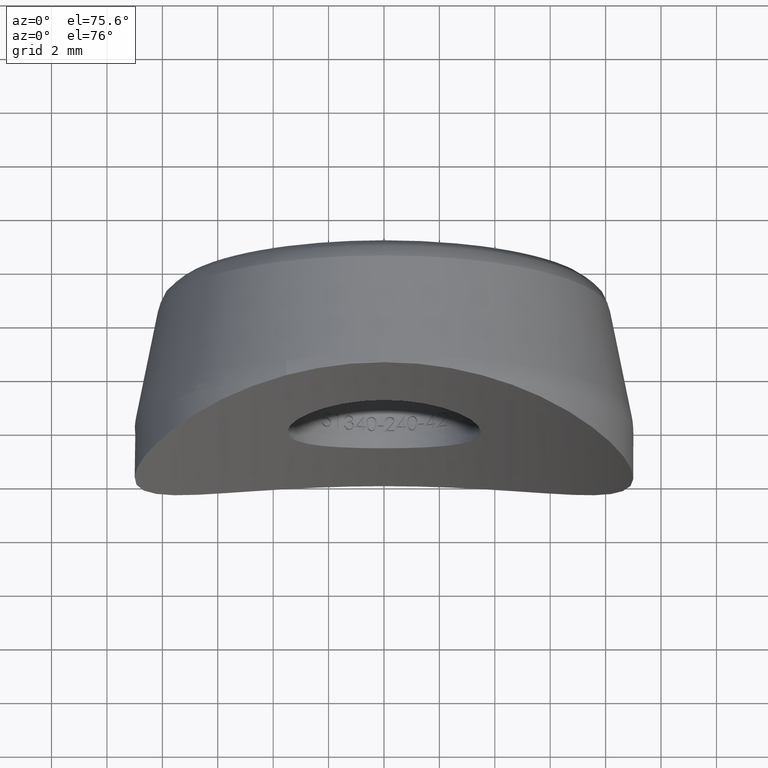
[diagram: clean part render]
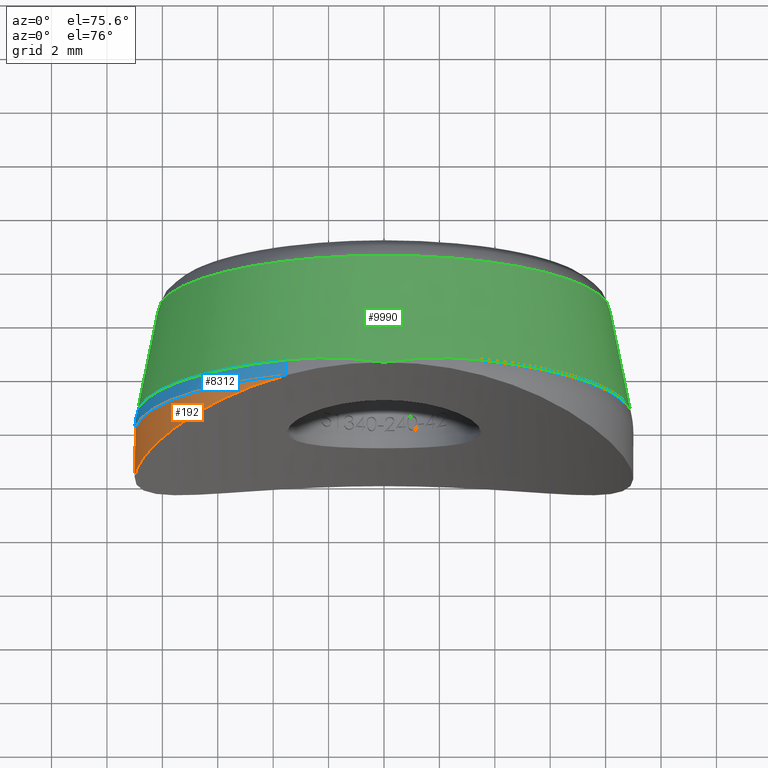
[diagram: same view with three faces highlighted in distinct colors, each labeled with its STEP entity id]
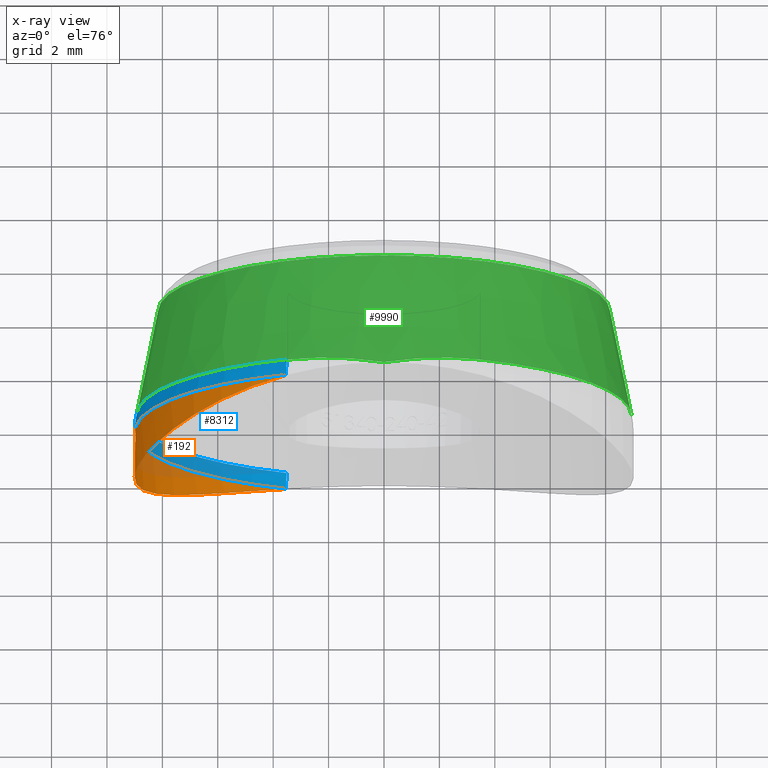
[diagram: x-ray of the same camera — body ghosted, the three highlighted faces saturated]
A machine part, auxiliary view with three faces highlighted in distinct colors.
The next image is the same camera in x-ray (body ghosted, the three faces saturated) — at least one of them is partly hidden behind the body in this view.
Their STEP definitions:

[orange] entity #192 — the highlighted cylindrical surface (partial cylindrical patch) has radius 9 mm, axis along (0, 1, 0).
#61 = CARTESIAN_POINT ( 'NONE',  ( -7.736212241592220984, -1.460268368390549076, -4.619470464599940485 ) ) ;
#99 = CARTESIAN_POINT ( 'NONE',  ( -8.324705470766970095, -1.701784759971366467, -3.448391093984752409 ) ) ;
#192 = ADVANCED_FACE ( 'NONE', ( #10699 ), #4926, .T. ) ;
#521 = DIRECTION ( 'NONE',  ( 0.000000000000000000, 0.000000000000000000, 1.000000000000000000 ) ) ;
#930 = CARTESIAN_POINT ( 'NONE',  ( -6.096080592182215874, -0.8924105569262656967, 6.635265254513756261 ) ) ;
#1112 = CARTESIAN_POINT ( 'NONE',  ( -8.868711480248640200, -1.944163354106136721, 1.547448648860504594 ) ) ;
#1476 = DIRECTION ( 'NONE',  ( 0.000000000000000000, 1.000000000000000000, 0.000000000000000000 ) ) ;
#1851 = CARTESIAN_POINT ( 'NONE',  ( -3.939818330900121790, -0.3652902765261617501, 8.103713511911527334 ) ) ;
#1935 = CARTESIAN_POINT ( 'NONE',  ( -7.978767912354337355, -1.551915153110567047, 4.254895545333862827 ) ) ;
#1969 = CARTESIAN_POINT ( 'NONE',  ( -6.986905837801116625, -1.182081130002816449, -5.689688094331717849 ) ) ;
#2064 = CARTESIAN_POINT ( 'NONE',  ( -8.730438296520546260, -1.881037187961504209, 2.197417258610651736 ) ) ;
#2610 = DIRECTION ( 'NONE',  ( -2.630675051077222500E-17, -1.000000000000000000, 0.000000000000000000 ) ) ;
#2702 = DIRECTION ( 'NONE',  ( 1.000000000000000000, -2.409338161078898811E-17, 0.000000000000000000 ) ) ;
#2939 = CARTESIAN_POINT ( 'NONE',  ( -8.828082600335466879, -1.925461494916844485, 1.764696307993757651 ) ) ;
#2990 = CARTESIAN_POINT ( 'NONE',  ( -8.999503959662272123, -2.004976458114370530, 0.4533054639374571870 ) ) ;
#3102 = B_SPLINE_CURVE_WITH_KNOTS ( 'NONE', 3,
 ( #7743, #1851, #6902, #5020, #4067, #930, #3979, #8924, #7868, #1935, #9893, #12916, #2064, #2939, #1112, #6866, #2990, #5862, #8882, #8051, #10948, #9059, #99, #10982, #61, #4978, #1969, #11897, #9988, #7031, #9935, #3947, #11984, #10903 ),
 .UNSPECIFIED., .F., .F.,
 ( 4, 2, 2, 2, 2, 2, 2, 2, 2, 2, 2, 2, 2, 2, 2, 2, 4 ),
 ( 0.003629396512257983438, 0.004955249946715591450, 0.006281103381173200328, 0.007606956815630807472, 0.008932810250088416351, 0.01158451711900363584, 0.01224744383623243768, 0.01291037055346124299, 0.01423622398791885360, 0.01556207742237646421, 0.01688793085683407483, 0.01821378429129168197, 0.01953963772574928912, 0.02086549116020689973, 0.02219134459466451034, 0.02351719802912212096, 0.02484305146357973157 ),
 .UNSPECIFIED. ) ;
#3461 = CIRCLE ( 'NONE', #4035, 9.000000000000000000 ) ;
#3947 = CARTESIAN_POINT ( 'NONE',  ( -4.327446838571765930, -0.4428089517646502937, -7.903573071571256214 ) ) ;
#3979 = CARTESIAN_POINT ( 'NONE',  ( -6.407001631410156328, -0.9890386179552449475, 6.335384170830606898 ) ) ;
#4035 = AXIS2_PLACEMENT_3D ( 'NONE', #9608, #2610, #2702 ) ;
#4067 = CARTESIAN_POINT ( 'NONE',  ( -5.428266630602044174, -0.7037976941601992165, 7.191861022797259473 ) ) ;
#4533 = VERTEX_POINT ( 'NONE', #8195 ) ;
#4926 = CYLINDRICAL_SURFACE ( 'NONE', #5630, 9.000000000000000000 ) ;
#4978 = CARTESIAN_POINT ( 'NONE',  ( -7.255648715824005279, -1.278615850110074392, -5.342663093704675070 ) ) ;
#5020 = CARTESIAN_POINT ( 'NONE',  ( -5.069946772384122724, -0.6116343676730731094, 7.448850926577253340 ) ) ;
#5076 = ORIENTED_EDGE ( 'NONE', *, *, #11708, .T. ) ;
#5630 = AXIS2_PLACEMENT_3D ( 'NONE', #6416, #1476, #521 ) ;
#5862 = CARTESIAN_POINT ( 'NONE',  ( -9.000485022732950924, -2.005436455884692659, -0.4333898004942154936 ) ) ;
#6416 = CARTESIAN_POINT ( 'NONE',  ( 0.000000000000000000, -10.00000000000000000, 0.000000000000000000 ) ) ;
#6866 = CARTESIAN_POINT ( 'NONE',  ( -8.966437089148390882, -1.989373801478621751, 0.8930669008316337587 ) ) ;
#6902 = CARTESIAN_POINT ( 'NONE',  ( -4.326899356163050214, -0.4427578506482586773, 7.903649939288478699 ) ) ;
#7031 = CARTESIAN_POINT ( 'NONE',  ( -5.429810668275199426, -0.7042392497046907618, -7.190548806686810401 ) ) ;
#7723 = ORIENTED_EDGE ( 'NONE', *, *, #8582, .F. ) ;
#7743 = CARTESIAN_POINT ( 'NONE',  ( -3.536529139191779691, -0.2970585407783443155, 8.276047465284840143 ) ) ;
#7868 = CARTESIAN_POINT ( 'NONE',  ( -7.252411954904890656, -1.277411947144067028, 5.347311400281633098 ) ) ;
#8051 = CARTESIAN_POINT ( 'NONE',  ( -8.837161727733391814, -1.929563424177947795, -1.761012243944029443 ) ) ;
#8195 = CARTESIAN_POINT ( 'NONE',  ( -3.536529139191779691, -0.2970585407783443155, 8.276047465284840143 ) ) ;
#8582 = EDGE_CURVE ( 'NONE', #4533, #9681, #3102, .T. ) ;
#8882 = CARTESIAN_POINT ( 'NONE',  ( -8.967462006814395536, -1.989852203035072042, -0.8838646286490374759 ) ) ;
#8924 = CARTESIAN_POINT ( 'NONE',  ( -6.984547120967750544, -1.181290466007106632, 5.692351360543773886 ) ) ;
#9059 = CARTESIAN_POINT ( 'NONE',  ( -8.485024214885042326, -1.771570017016957932, -3.032816774959728789 ) ) ;
#9608 = CARTESIAN_POINT ( 'NONE',  ( 0.000000000000000000, -0.2970585407783502552, 0.000000000000000000 ) ) ;
#9681 = VERTEX_POINT ( 'NONE', #11333 ) ;
#9893 = CARTESIAN_POINT ( 'NONE',  ( -8.350844510711889157, -1.711977935656837424, 3.470575901111829786 ) ) ;
#9935 = CARTESIAN_POINT ( 'NONE',  ( -5.077129608634842306, -0.6133409390758622903, -7.444193601422150586 ) ) ;
#9988 = CARTESIAN_POINT ( 'NONE',  ( -6.093914555041149761, -0.8917933331739382741, -6.637095858168533091 ) ) ;
#10699 = FACE_OUTER_BOUND ( 'NONE', #11045, .T. ) ;
#10903 = CARTESIAN_POINT ( 'NONE',  ( -3.536529139191820992, -0.2970585407783558063, -8.276047465284809945 ) ) ;
#10948 = CARTESIAN_POINT ( 'NONE',  ( -8.740402880028945276, -1.885112347579089187, -2.190655384227395253 ) ) ;
#10982 = CARTESIAN_POINT ( 'NONE',  ( -7.950216528309121955, -1.546115501649479640, -4.241011608695666624 ) ) ;
#11045 = EDGE_LOOP ( 'NONE', ( #7723, #5076 ) ) ;
#11333 = CARTESIAN_POINT ( 'NONE',  ( -3.536529139191820992, -0.2970585407783558063, -8.276047465284809945 ) ) ;
#11708 = EDGE_CURVE ( 'NONE', #4533, #9681, #3461, .T. ) ;
#11897 = CARTESIAN_POINT ( 'NONE',  ( -6.405327563174131988, -0.9884758644843807396, -6.337285113163297900 ) ) ;
#11984 = CARTESIAN_POINT ( 'NONE',  ( -3.937798154644530868, -0.3649484867255212706, -8.104576775712773795 ) ) ;
#12916 = CARTESIAN_POINT ( 'NONE',  ( -8.673143937105528778, -1.855193209865075410, 2.413590285594501061 ) ) ;

[blue] entity #8312 — the highlighted toroidal blend (fillet) surface has major radius 6 mm and minor (blend) radius 3 mm.
#165 = CARTESIAN_POINT ( 'NONE',  ( 1.237191076345110195E-16, -0.2970585407783502552, 0.000000000000000000 ) ) ;
#358 = DIRECTION ( 'NONE',  ( 0.3929476821324237035, 0.000000000000000000, -0.9195608294760906354 ) ) ;
#394 = EDGE_CURVE ( 'NONE', #600, #7247, #8657, .T. ) ;
#600 = VERTEX_POINT ( 'NONE', #6004 ) ;
#1059 = CARTESIAN_POINT ( 'NONE',  ( 1.391966423491622878E-16, 0.2912898646362013233, 0.000000000000000000 ) ) ;
#2010 = VERTEX_POINT ( 'NONE', #2652 ) ;
#2164 = DIRECTION ( 'NONE',  ( -2.630675051077222500E-17, -1.000000000000000000, 0.000000000000000000 ) ) ;
#2524 = CIRCLE ( 'NONE', #2882, 2.999999999999999556 ) ;
#2610 = DIRECTION ( 'NONE',  ( -2.630675051077222500E-17, -1.000000000000000000, 0.000000000000000000 ) ) ;
#2652 = CARTESIAN_POINT ( 'NONE',  ( -3.513636803764328409, 0.2912898646362016564, -8.222475715376242889 ) ) ;
#2702 = DIRECTION ( 'NONE',  ( 1.000000000000000000, -2.409338161078898811E-17, 0.000000000000000000 ) ) ;
#2797 = TOROIDAL_SURFACE ( 'NONE', #9404, 5.999999999999998224, 3.000000000000000000 ) ;
#2882 = AXIS2_PLACEMENT_3D ( 'NONE', #8158, #10560, #10477 ) ;
#3232 = CARTESIAN_POINT ( 'NONE',  ( 1.391966423491622878E-16, 0.2912898646362013233, 0.000000000000000000 ) ) ;
#3461 = CIRCLE ( 'NONE', #4035, 9.000000000000000000 ) ;
#3950 = CIRCLE ( 'NONE', #11937, 2.999999999999999556 ) ;
#4035 = AXIS2_PLACEMENT_3D ( 'NONE', #9608, #2610, #2702 ) ;
#4054 = ORIENTED_EDGE ( 'NONE', *, *, #11708, .F. ) ;
#4234 = DIRECTION ( 'NONE',  ( 5.261350102154445000E-17, 1.000000000000000000, -0.000000000000000000 ) ) ;
#4533 = VERTEX_POINT ( 'NONE', #8195 ) ;
#5197 = CARTESIAN_POINT ( 'NONE',  ( -3.513636803764344840, 0.2912898646360950194, 8.222475715376260652 ) ) ;
#5646 = CIRCLE ( 'NONE', #5858, 8.941742027072757892 ) ;
#5858 = AXIS2_PLACEMENT_3D ( 'NONE', #1059, #6038, #7918 ) ;
#5896 = AXIS2_PLACEMENT_3D ( 'NONE', #3232, #4234, #12244 ) ;
#6004 = CARTESIAN_POINT ( 'NONE',  ( -8.941742027072759669, 0.2912898646362018229, 1.095047575225602147E-15 ) ) ;
#6038 = DIRECTION ( 'NONE',  ( 5.261350102154445000E-17, 1.000000000000000000, -0.000000000000000000 ) ) ;
#6508 = FACE_OUTER_BOUND ( 'NONE', #11683, .T. ) ;
#6722 = EDGE_CURVE ( 'NONE', #9681, #2010, #2524, .T. ) ;
#7247 = VERTEX_POINT ( 'NONE', #5197 ) ;
#7569 = ORIENTED_EDGE ( 'NONE', *, *, #8593, .F. ) ;
#7918 = DIRECTION ( 'NONE',  ( 1.000000000000000000, -5.456330278163895655E-17, 0.000000000000000000 ) ) ;
#8158 = CARTESIAN_POINT ( 'NONE',  ( -2.357686092794547328, -0.2970585407783501442, -5.517364976856540260 ) ) ;
#8173 = CARTESIAN_POINT ( 'NONE',  ( -2.357686092794615718, -0.2970585407789554933, 5.517364976856641512 ) ) ;
#8195 = CARTESIAN_POINT ( 'NONE',  ( -3.536529139191779691, -0.2970585407783443155, 8.276047465284840143 ) ) ;
#8312 = ADVANCED_FACE ( 'NONE', ( #6508 ), #2797, .T. ) ;
#8593 = EDGE_CURVE ( 'NONE', #2010, #600, #5646, .T. ) ;
#8657 = CIRCLE ( 'NONE', #5896, 8.941742027072757892 ) ;
#9110 = DIRECTION ( 'NONE',  ( 1.000000000000000000, -2.630675051077222500E-17, 0.000000000000000000 ) ) ;
#9137 = EDGE_CURVE ( 'NONE', #4533, #7247, #3950, .T. ) ;
#9404 = AXIS2_PLACEMENT_3D ( 'NONE', #165, #2164, #9110 ) ;
#9608 = CARTESIAN_POINT ( 'NONE',  ( 0.000000000000000000, -0.2970585407783502552, 0.000000000000000000 ) ) ;
#9681 = VERTEX_POINT ( 'NONE', #11333 ) ;
#10477 = DIRECTION ( 'NONE',  ( -0.3929476821324247582, 0.000000000000000000, -0.9195608294760901913 ) ) ;
#10560 = DIRECTION ( 'NONE',  ( 0.9195608294760901913, -4.798930585228542427E-16, -0.3929476821324246472 ) ) ;
#10741 = ORIENTED_EDGE ( 'NONE', *, *, #9137, .T. ) ;
#11138 = DIRECTION ( 'NONE',  ( -0.9195608294760905244, -2.405945768478990376E-14, -0.3929476821324236480 ) ) ;
#11220 = ORIENTED_EDGE ( 'NONE', *, *, #394, .F. ) ;
#11333 = CARTESIAN_POINT ( 'NONE',  ( -3.536529139191820992, -0.2970585407783558063, -8.276047465284809945 ) ) ;
#11683 = EDGE_LOOP ( 'NONE', ( #10741, #11220, #7569, #12867, #4054 ) ) ;
#11708 = EDGE_CURVE ( 'NONE', #4533, #9681, #3461, .T. ) ;
#11937 = AXIS2_PLACEMENT_3D ( 'NONE', #8173, #11138, #358 ) ;
#12244 = DIRECTION ( 'NONE',  ( 1.000000000000000000, -5.456330278163895655E-17, 8.881784197001252323E-16 ) ) ;
#12867 = ORIENTED_EDGE ( 'NONE', *, *, #6722, .F. ) ;

[green] entity #9990 — the highlighted conical surface has half-angle 11.31 deg.
#241 = VERTEX_POINT ( 'NONE', #1890 ) ;
#394 = EDGE_CURVE ( 'NONE', #600, #7247, #8657, .T. ) ;
#466 = ORIENTED_EDGE ( 'NONE', *, *, #394, .T. ) ;
#600 = VERTEX_POINT ( 'NONE', #6004 ) ;
#666 = VERTEX_POINT ( 'NONE', #7887 ) ;
#940 = LINE ( 'NONE', #12365, #1417 ) ;
#1111 = CIRCLE ( 'NONE', #4063, 8.941742027072757892 ) ;
#1228 = CARTESIAN_POINT ( 'NONE',  ( -2.952530129068970943, 0.2912898646359790011, 8.462248398360399548 ) ) ;
#1311 = CARTESIAN_POINT ( 'NONE',  ( -2.369731318023446942, 0.2688513903694005891, 8.647553300242943664 ) ) ;
#1417 = VECTOR ( 'NONE', #4474, 1000.000000000000000 ) ;
#1430 = DIRECTION ( 'NONE',  ( 5.261350102154445000E-17, 1.000000000000000000, -0.000000000000000000 ) ) ;
#1890 = CARTESIAN_POINT ( 'NONE',  ( 1.711870285715402075E-17, 0.000000000000000000, 9.000000000000000000 ) ) ;
#1919 = DIRECTION ( 'NONE',  ( -5.261350102154445000E-17, -1.000000000000000000, 0.000000000000000000 ) ) ;
#2197 = CARTESIAN_POINT ( 'NONE',  ( 8.160776772972363702, 4.196116135138177938, 0.000000000000000000 ) ) ;
#2231 = ORIENTED_EDGE ( 'NONE', *, *, #11597, .T. ) ;
#2233 = CARTESIAN_POINT ( 'NONE',  ( -3.513636803764344840, 0.2912898646360950194, 8.222475715376260652 ) ) ;
#2272 = CARTESIAN_POINT ( 'NONE',  ( -0.6011557166175597322, 0.09994811570157795255, 8.980010376859684840 ) ) ;
#2828 = EDGE_CURVE ( 'NONE', #4808, #666, #8154, .T. ) ;
#2918 = DIRECTION ( 'NONE',  ( -1.000000000000000000, 0.000000000000000000, 0.000000000000000000 ) ) ;
#3232 = CARTESIAN_POINT ( 'NONE',  ( 1.391966423491622878E-16, 0.2912898646362013233, 0.000000000000000000 ) ) ;
#3337 = CARTESIAN_POINT ( 'NONE',  ( 0.2999507259871895259, 0.04841574159881113781, 8.986563016654448788 ) ) ;
#3377 = CARTESIAN_POINT ( 'NONE',  ( 0.1484626099651944198, 0.02468338520037776165, 8.995063322959925500 ) ) ;
#3451 = CARTESIAN_POINT ( 'NONE',  ( 9.000000000000000000, 3.938402287945035527E-16, 0.000000000000000000 ) ) ;
#3537 = CARTESIAN_POINT ( 'NONE',  ( 3.513636803764310201, 0.2912898646361995469, 8.222475715376251770 ) ) ;
#4063 = AXIS2_PLACEMENT_3D ( 'NONE', #12264, #1430, #11361 ) ;
#4234 = DIRECTION ( 'NONE',  ( 5.261350102154445000E-17, 1.000000000000000000, -0.000000000000000000 ) ) ;
#4328 = CARTESIAN_POINT ( 'NONE',  ( 1.193992595277497459, 0.1670400778744463299, 8.891784521139920017 ) ) ;
#4474 = DIRECTION ( 'NONE',  ( -0.1961161351381839613, -0.9805806756909202226, 2.401729971581266715E-17 ) ) ;
#4808 = VERTEX_POINT ( 'NONE', #2197 ) ;
#5197 = CARTESIAN_POINT ( 'NONE',  ( -3.513636803764344840, 0.2912898646360950194, 8.222475715376260652 ) ) ;
#5368 = CARTESIAN_POINT ( 'NONE',  ( 1.489342575991853046, 0.1972142825677098976, 8.841021651213916144 ) ) ;
#5409 = CARTESIAN_POINT ( 'NONE',  ( 0.7481479263251873402, 0.1118837125433471275, 8.947648498459562560 ) ) ;
#5475 = AXIS2_PLACEMENT_3D ( 'NONE', #12902, #1919, #2918 ) ;
#5896 = AXIS2_PLACEMENT_3D ( 'NONE', #3232, #4234, #12244 ) ;
#6004 = CARTESIAN_POINT ( 'NONE',  ( -8.941742027072759669, 0.2912898646362018229, 1.095047575225602147E-15 ) ) ;
#6122 = EDGE_CURVE ( 'NONE', #7247, #241, #8688, .T. ) ;
#6141 = CARTESIAN_POINT ( 'NONE',  ( 4.814824860968089633E-32, 8.673617379884035472E-16, 0.000000000000000000 ) ) ;
#6191 = DIRECTION ( 'NONE',  ( -5.261350102154445000E-17, -1.000000000000000000, 0.000000000000000000 ) ) ;
#6553 = CONICAL_SURFACE ( 'NONE', #12962, 9.000000000000000000, 0.1973955598498806085 ) ;
#6738 = VECTOR ( 'NONE', #10388, 1000.000000000000000 ) ;
#7077 = ORIENTED_EDGE ( 'NONE', *, *, #8400, .T. ) ;
#7101 = DIRECTION ( 'NONE',  ( 1.000000000000000000, -5.261350102154444383E-17, 0.000000000000000000 ) ) ;
#7247 = VERTEX_POINT ( 'NONE', #5197 ) ;
#7642 = EDGE_CURVE ( 'NONE', #4808, #10386, #11844, .T. ) ;
#7887 = CARTESIAN_POINT ( 'NONE',  ( 8.941742027072759669, 0.2912898646361988808, 0.000000000000000000 ) ) ;
#8090 = B_SPLINE_CURVE_WITH_KNOTS ( 'NONE', 3,
 ( #11479, #3377, #3337, #9374, #5409, #4328, #5368, #9420, #12524, #12393 ),
 .UNSPECIFIED., .F., .F.,
 ( 4, 2, 2, 2, 4 ),
 ( -4.334183121202739384E-05, 0.0004084014656475171492, 0.0008601447625070619092, 0.001763631356226151321, 0.003570604543664329059 ),
 .UNSPECIFIED. ) ;
#8154 = LINE ( 'NONE', #3451, #6738 ) ;
#8400 = EDGE_CURVE ( 'NONE', #11540, #666, #1111, .T. ) ;
#8540 = CARTESIAN_POINT ( 'NONE',  ( -8.160776772972363702, 4.196116135138177938, 1.051102842906766997E-15 ) ) ;
#8657 = CIRCLE ( 'NONE', #5896, 8.941742027072757892 ) ;
#8676 = EDGE_CURVE ( 'NONE', #241, #11540, #8090, .T. ) ;
#8684 = EDGE_LOOP ( 'NONE', ( #11032, #2231, #466, #12032, #9787, #7077, #10239 ) ) ;
#8688 = B_SPLINE_CURVE_WITH_KNOTS ( 'NONE', 3,
 ( #2233, #1228, #1311, #9182, #2272, #12191 ),
 .UNSPECIFIED., .F., .F.,
 ( 4, 2, 4 ),
 ( 0.000000000000000000, 0.001829201745908844590, 0.003658403491817689181 ),
 .UNSPECIFIED. ) ;
#9182 = CARTESIAN_POINT ( 'NONE',  ( -1.196285079027188392, 0.1733730629509259158, 8.905433154794963002 ) ) ;
#9374 = CARTESIAN_POINT ( 'NONE',  ( 0.5990620060545538417, 0.09184943412188548151, 8.962884156314927964 ) ) ;
#9420 = CARTESIAN_POINT ( 'NONE',  ( 2.369560525559981201, 0.2688447327935307163, 8.647607546258193167 ) ) ;
#9787 = ORIENTED_EDGE ( 'NONE', *, *, #8676, .T. ) ;
#9990 = ADVANCED_FACE ( 'NONE', ( #10154 ), #6553, .T. ) ;
#10154 = FACE_OUTER_BOUND ( 'NONE', #8684, .T. ) ;
#10239 = ORIENTED_EDGE ( 'NONE', *, *, #2828, .F. ) ;
#10386 = VERTEX_POINT ( 'NONE', #8540 ) ;
#10388 = DIRECTION ( 'NONE',  ( 0.1961161351381838780, -0.9805806756909202226, 0.000000000000000000 ) ) ;
#11032 = ORIENTED_EDGE ( 'NONE', *, *, #7642, .T. ) ;
#11361 = DIRECTION ( 'NONE',  ( 1.000000000000000000, -5.456330278163895655E-17, -8.881784197001252323E-16 ) ) ;
#11479 = CARTESIAN_POINT ( 'NONE',  ( 1.711870285715402075E-17, 0.000000000000000000, 9.000000000000000000 ) ) ;
#11540 = VERTEX_POINT ( 'NONE', #3537 ) ;
#11597 = EDGE_CURVE ( 'NONE', #10386, #600, #940, .T. ) ;
#11844 = CIRCLE ( 'NONE', #5475, 8.160776772972363702 ) ;
#12032 = ORIENTED_EDGE ( 'NONE', *, *, #6122, .T. ) ;
#12191 = CARTESIAN_POINT ( 'NONE',  ( 1.711870285715402075E-17, 0.000000000000000000, 9.000000000000000000 ) ) ;
#12244 = DIRECTION ( 'NONE',  ( 1.000000000000000000, -5.456330278163895655E-17, 8.881784197001252323E-16 ) ) ;
#12264 = CARTESIAN_POINT ( 'NONE',  ( 1.391966423491622385E-16, 0.2912898646361993804, 0.000000000000000000 ) ) ;
#12365 = CARTESIAN_POINT ( 'NONE',  ( -9.000000000000000000, 1.340883247182303640E-15, 1.102182119232617714E-15 ) ) ;
#12393 = CARTESIAN_POINT ( 'NONE',  ( 3.513636803764310201, 0.2912898646361995469, 8.222475715376251770 ) ) ;
#12524 = CARTESIAN_POINT ( 'NONE',  ( 2.952447361417955385, 0.2912898646361999910, 8.462283766718353917 ) ) ;
#12902 = CARTESIAN_POINT ( 'NONE',  ( 2.207723605626119049E-16, 4.196116135138177938, 0.000000000000000000 ) ) ;
#12962 = AXIS2_PLACEMENT_3D ( 'NONE', #6141, #6191, #7101 ) ;